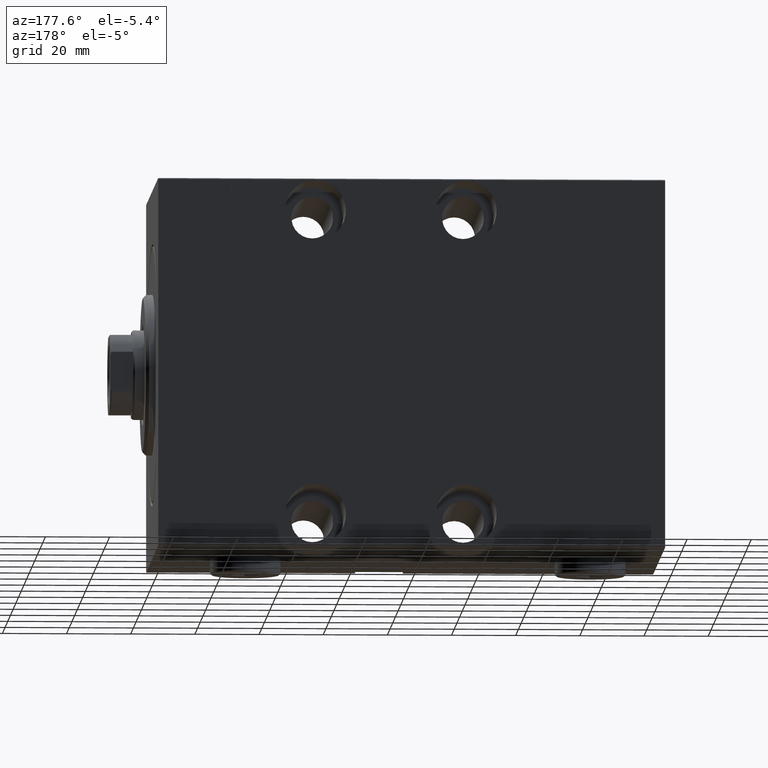
[diagram: clean part render]
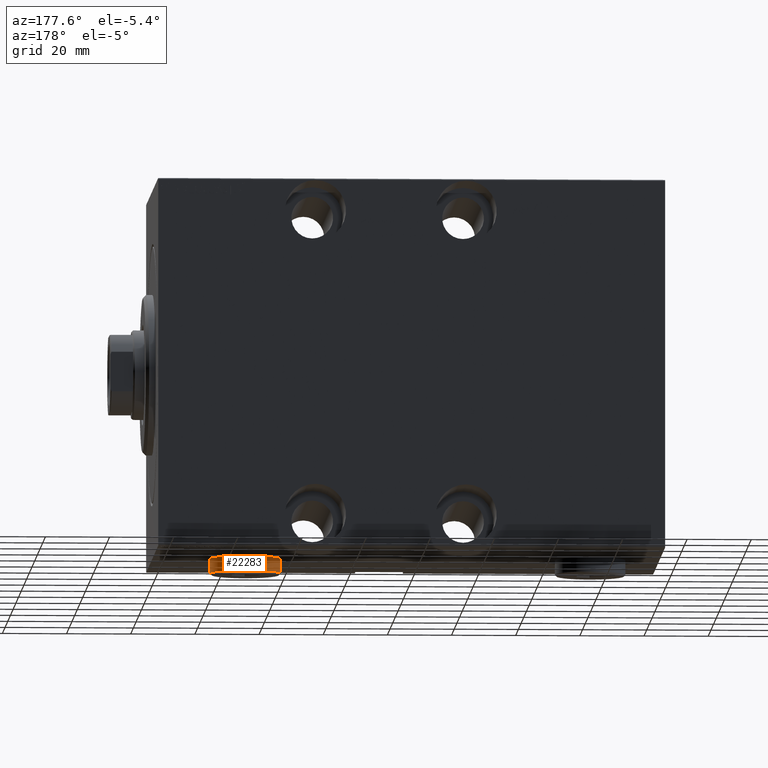
[diagram: same view with one face highlighted and labeled with its STEP entity id]
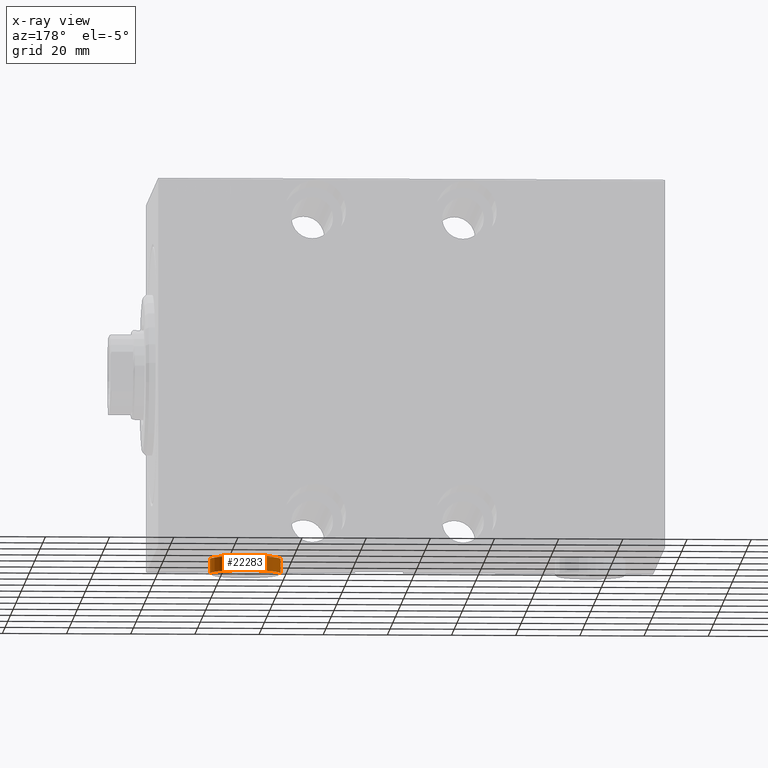
[diagram: x-ray of the same camera — body ghosted, the highlighted face saturated]
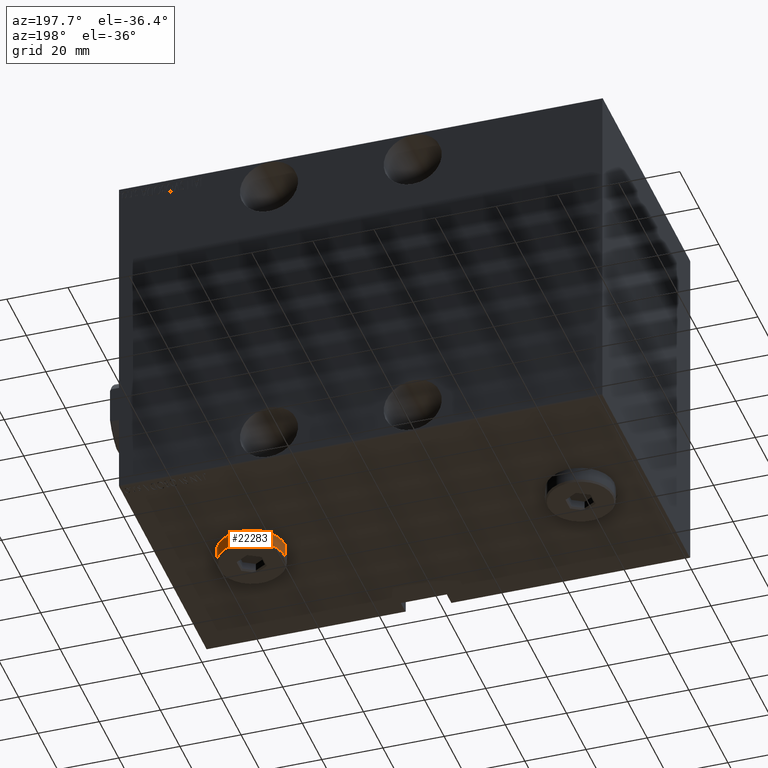
[diagram: same view with one face highlighted and labeled with its STEP entity id]
A machine part, auxiliary view. The second image highlights one B-rep face of the part: STEP entity #22283.
The next image is the same camera in x-ray: the body ghosted, the highlighted face saturated — about 0% of this face is hidden behind the body in this view.
A second angle (auxiliary view) of the same face is appended — the face is thin or edge-on in the first view.
In plain terms, the highlighted cylindrical surface (edge-blend (fillet) strip) has radius 11 mm, axis along (0, 0, 1).
Its self-contained STEP definition (entity closure, byte-faithful):
#407 = DIRECTION ( 'NONE',  ( -0.000000000000000000, -0.000000000000000000, -1.000000000000000000 ) ) ;
#2552 = AXIS2_PLACEMENT_3D ( 'NONE', #14988, #7598, #18131 ) ;
#2675 = CIRCLE ( 'NONE', #36388, 11.00000000000000000 ) ;
#4004 = CYLINDRICAL_SURFACE ( 'NONE', #2552, 11.00000000000000000 ) ;
#4588 = CARTESIAN_POINT ( 'NONE',  ( -11.00000000000000000, 0.000000000000000000, 0.000000000000000000 ) ) ;
#6679 = CARTESIAN_POINT ( 'NONE',  ( 0.000000000000000000, 0.000000000000000000, 0.000000000000000000 ) ) ;
#6906 = ORIENTED_EDGE ( 'NONE', *, *, #27396, .T. ) ;
#7598 = DIRECTION ( 'NONE',  ( -0.000000000000000000, -0.000000000000000000, -1.000000000000000000 ) ) ;
#9029 = VERTEX_POINT ( 'NONE', #33533 ) ;
#12348 = VECTOR ( 'NONE', #407, 1000.000000000000000 ) ;
#13160 = EDGE_CURVE ( 'NONE', #42577, #24279, #41875, .T. ) ;
#13181 = DIRECTION ( 'NONE',  ( 1.000000000000000000, 0.000000000000000000, 0.000000000000000000 ) ) ;
#14988 = CARTESIAN_POINT ( 'NONE',  ( 0.000000000000000000, 0.000000000000000000, 5.000000000000000000 ) ) ;
#15448 = VERTEX_POINT ( 'NONE', #17651 ) ;
#16702 = CARTESIAN_POINT ( 'NONE',  ( 11.00000000000000000, 1.347111479062088405E-15, 0.000000000000000000 ) ) ;
#16948 = EDGE_LOOP ( 'NONE', ( #39769, #6906, #23776, #36421 ) ) ;
#17651 = CARTESIAN_POINT ( 'NONE',  ( 11.00000000000000000, 1.347111479062088405E-15, 4.500000000000003553 ) ) ;
#18131 = DIRECTION ( 'NONE',  ( -1.000000000000000000, 0.000000000000000000, 0.000000000000000000 ) ) ;
#18532 = DIRECTION ( 'NONE',  ( -0.000000000000000000, -0.000000000000000000, -1.000000000000000000 ) ) ;
#20343 = AXIS2_PLACEMENT_3D ( 'NONE', #6679, #26868, #13181 ) ;
#20793 = LINE ( 'NONE', #34499, #12348 ) ;
#22283 = ADVANCED_FACE ( 'NONE', ( #34756 ), #4004, .T. ) ;
#23724 = DIRECTION ( 'NONE',  ( 0.000000000000000000, 0.000000000000000000, -1.000000000000000000 ) ) ;
#23776 = ORIENTED_EDGE ( 'NONE', *, *, #24099, .T. ) ;
#24099 = EDGE_CURVE ( 'NONE', #9029, #42577, #35388, .T. ) ;
#24279 = VERTEX_POINT ( 'NONE', #16702 ) ;
#25502 = VECTOR ( 'NONE', #18532, 1000.000000000000000 ) ;
#26868 = DIRECTION ( 'NONE',  ( 0.000000000000000000, 0.000000000000000000, 1.000000000000000000 ) ) ;
#27325 = DIRECTION ( 'NONE',  ( 1.000000000000000000, 0.000000000000000000, 0.000000000000000000 ) ) ;
#27396 = EDGE_CURVE ( 'NONE', #15448, #9029, #2675, .T. ) ;
#30440 = EDGE_CURVE ( 'NONE', #15448, #24279, #20793, .T. ) ;
#33533 = CARTESIAN_POINT ( 'NONE',  ( -11.00000000000000000, 0.000000000000000000, 4.500000000000003553 ) ) ;
#34499 = CARTESIAN_POINT ( 'NONE',  ( 11.00000000000000000, 1.347111479062088405E-15, 5.000000000000000000 ) ) ;
#34756 = FACE_OUTER_BOUND ( 'NONE', #16948, .T. ) ;
#35388 = LINE ( 'NONE', #41909, #25502 ) ;
#36388 = AXIS2_PLACEMENT_3D ( 'NONE', #40823, #23724, #27325 ) ;
#36421 = ORIENTED_EDGE ( 'NONE', *, *, #13160, .T. ) ;
#39769 = ORIENTED_EDGE ( 'NONE', *, *, #30440, .F. ) ;
#40823 = CARTESIAN_POINT ( 'NONE',  ( 0.000000000000000000, 0.000000000000000000, 4.500000000000003553 ) ) ;
#41875 = CIRCLE ( 'NONE', #20343, 11.00000000000000000 ) ;
#41909 = CARTESIAN_POINT ( 'NONE',  ( -11.00000000000000000, 0.000000000000000000, 5.000000000000000000 ) ) ;
#42577 = VERTEX_POINT ( 'NONE', #4588 ) ;